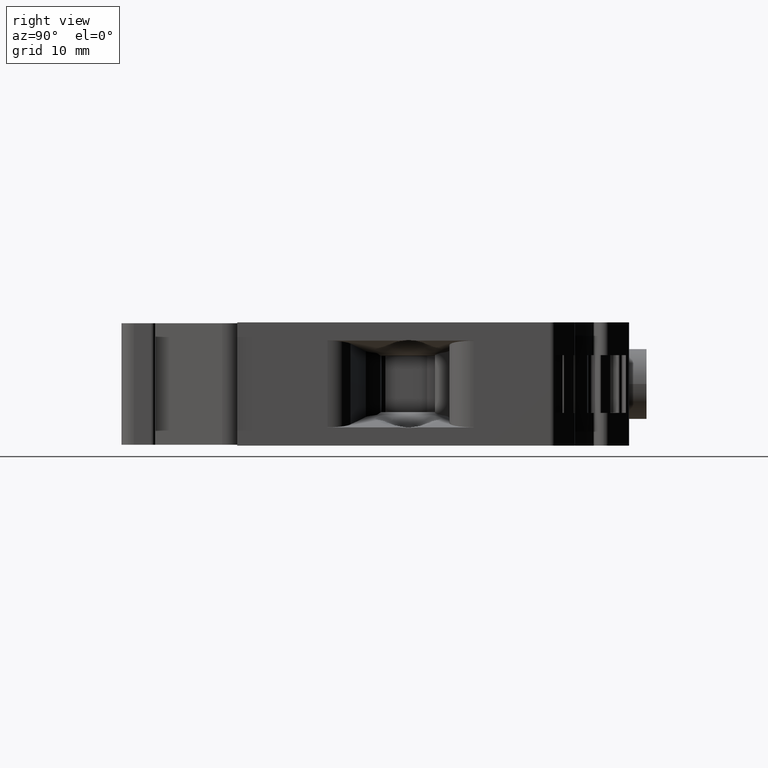
[diagram: clean part render]
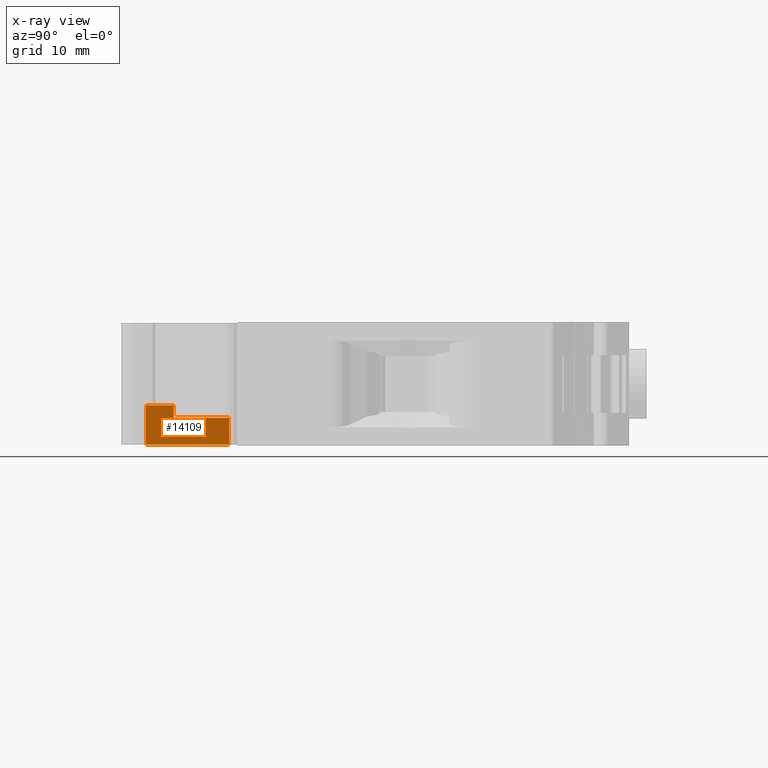
[diagram: x-ray — body ghosted, one internal face saturated and labeled with its STEP entity id]
A machine part, right view, then the same camera in x-ray: the body is ghosted and one INTERNAL B-rep face — a face not visible from any outside direction — is saturated and labeled: STEP entity #14109.
In plain terms, the highlighted planar face has unit normal (1, -0, 0).
Its self-contained STEP definition (entity closure, byte-faithful):
#2009 = LINE ( 'NONE', #2087, #7174 ) ;
#2081 = DIRECTION ( 'NONE',  ( 0.0000000000000000000, -0.0000000000000000000, -1.000000000000000000 ) ) ;
#2087 = CARTESIAN_POINT ( 'NONE',  ( 31.40763746354981800, -98.44807821534382700, -138.5951853950770100 ) ) ;
#3393 = CARTESIAN_POINT ( 'NONE',  ( 31.40763746354981800, -98.44807821534382700, -111.6451853950818100 ) ) ;
#3415 = CARTESIAN_POINT ( 'NONE',  ( 31.40763746354982500, -98.44807821534381300, -106.8951853950800800 ) ) ;
#3426 = CARTESIAN_POINT ( 'NONE',  ( 31.40763746355034800, -88.38320129209698500, -111.6451853950819200 ) ) ;
#3449 = CARTESIAN_POINT ( 'NONE',  ( 31.40763746354991100, -95.08434711280602900, -106.8951853950800800 ) ) ;
#3455 = CARTESIAN_POINT ( 'NONE',  ( 31.40763746355017400, -95.08434711280602900, -108.3951853950798100 ) ) ;
#3496 = CARTESIAN_POINT ( 'NONE',  ( 31.40763746355034100, -88.38320129209698500, -108.3951853950798100 ) ) ;
#4230 = PLANE ( 'NONE',  #6783 ) ;
#4235 = CARTESIAN_POINT ( 'NONE',  ( 31.40763746355000000, -95.08434711280588700, -138.5951853950770100 ) ) ;
#4236 = DIRECTION ( 'NONE',  ( 5.288730825984420100E-014, 1.000000000000000000, 0.0000000000000000000 ) ) ;
#4257 = DIRECTION ( 'NONE',  ( 1.000000000000000000, -5.288730825984420100E-014, 0.0000000000000000000 ) ) ;
#4272 = FACE_OUTER_BOUND ( 'NONE', #10246, .T. ) ;
#6783 = AXIS2_PLACEMENT_3D ( 'NONE', #4235, #4257, #4236 ) ;
#7174 = VECTOR ( 'NONE', #2081, 1000.000000000000000 ) ;
#7339 = VECTOR ( 'NONE', #11793, 1000.000000000000000 ) ;
#7392 = VECTOR ( 'NONE', #11851, 1000.000000000000000 ) ;
#7428 = VECTOR ( 'NONE', #11848, 1000.000000000000000 ) ;
#7667 = VECTOR ( 'NONE', #11484, 1000.000000000000000 ) ;
#7669 = VECTOR ( 'NONE', #11474, 1000.000000000000000 ) ;
#8141 = VERTEX_POINT ( 'NONE', #3393 ) ;
#8150 = VERTEX_POINT ( 'NONE', #3415 ) ;
#8165 = VERTEX_POINT ( 'NONE', #3426 ) ;
#8189 = VERTEX_POINT ( 'NONE', #3496 ) ;
#8222 = VERTEX_POINT ( 'NONE', #3449 ) ;
#8261 = VERTEX_POINT ( 'NONE', #3455 ) ;
#8733 = ORIENTED_EDGE ( 'NONE', *, *, #17439, .F. ) ;
#8734 = ORIENTED_EDGE ( 'NONE', *, *, #17121, .F. ) ;
#8738 = ORIENTED_EDGE ( 'NONE', *, *, #17482, .F. ) ;
#8740 = ORIENTED_EDGE ( 'NONE', *, *, #17463, .T. ) ;
#8757 = ORIENTED_EDGE ( 'NONE', *, *, #17477, .F. ) ;
#8763 = ORIENTED_EDGE ( 'NONE', *, *, #17443, .F. ) ;
#10246 = EDGE_LOOP ( 'NONE', ( #8757, #8733, #8734, #8740, #8738, #8763 ) ) ;
#11451 = LINE ( 'NONE', #11472, #7669 ) ;
#11454 = CARTESIAN_POINT ( 'NONE',  ( 31.40763746355000000, -95.08434711280560200, -111.6451853950818400 ) ) ;
#11472 = CARTESIAN_POINT ( 'NONE',  ( 31.40763746355034100, -0.01000000000000000000, -108.3951853950797800 ) ) ;
#11474 = DIRECTION ( 'NONE',  ( 4.008692888537403900E-035, -1.000000000000000000, -5.740673052019120800E-021 ) ) ;
#11480 = LINE ( 'NONE', #11454, #7667 ) ;
#11484 = DIRECTION ( 'NONE',  ( 5.288730825984420100E-014, 1.000000000000000000, -1.059119155225519100E-014 ) ) ;
#11782 = LINE ( 'NONE', #11797, #7339 ) ;
#11793 = DIRECTION ( 'NONE',  ( -0.0000000000000000000, 1.000000000000000000, 0.0000000000000000000 ) ) ;
#11797 = CARTESIAN_POINT ( 'NONE',  ( 31.40763746354982500, -97.94807821534382700, -106.8951853950800600 ) ) ;
#11834 = LINE ( 'NONE', #11846, #7428 ) ;
#11843 = CARTESIAN_POINT ( 'NONE',  ( 31.40763746355054700, -88.38320129209698500, -140.1951853950770000 ) ) ;
#11846 = CARTESIAN_POINT ( 'NONE',  ( 31.40763746355000000, -95.08434711280605700, -138.5951853950770100 ) ) ;
#11848 = DIRECTION ( 'NONE',  ( -0.0000000000000000000, 0.0000000000000000000, 1.000000000000000000 ) ) ;
#11850 = LINE ( 'NONE', #11843, #7392 ) ;
#11851 = DIRECTION ( 'NONE',  ( -6.982966722216410200E-015, -5.740673052019120800E-021, 1.000000000000000000 ) ) ;
#14109 = ADVANCED_FACE ( 'NONE', ( #4272 ), #4230, .F. ) ;
#17121 = EDGE_CURVE ( 'NONE', #8150, #8141, #2009, .T. ) ;
#17439 = EDGE_CURVE ( 'NONE', #8141, #8165, #11480, .T. ) ;
#17443 = EDGE_CURVE ( 'NONE', #8189, #8261, #11451, .T. ) ;
#17463 = EDGE_CURVE ( 'NONE', #8150, #8222, #11782, .T. ) ;
#17477 = EDGE_CURVE ( 'NONE', #8165, #8189, #11850, .T. ) ;
#17482 = EDGE_CURVE ( 'NONE', #8261, #8222, #11834, .T. ) ;